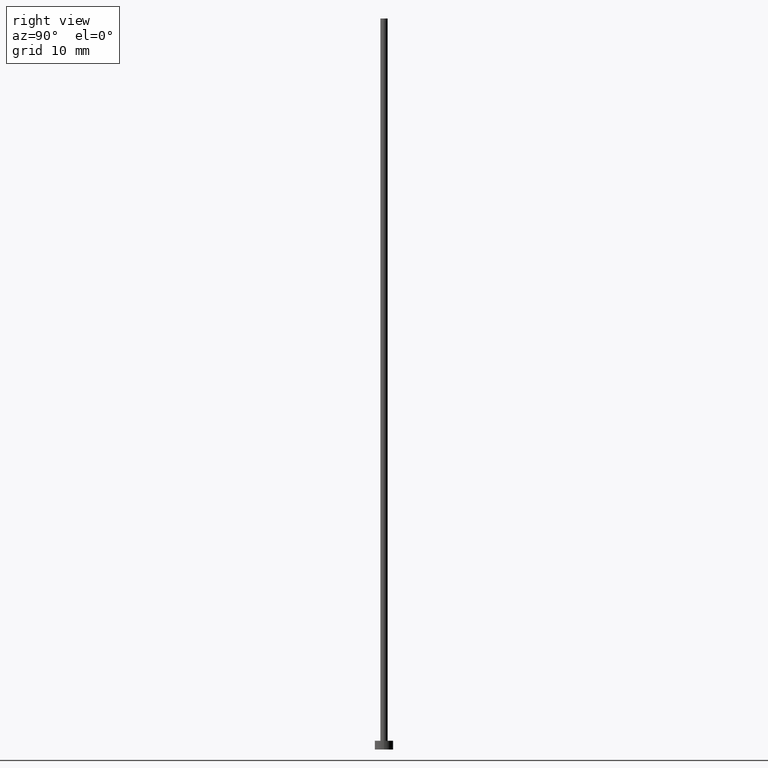
[diagram: clean part render]
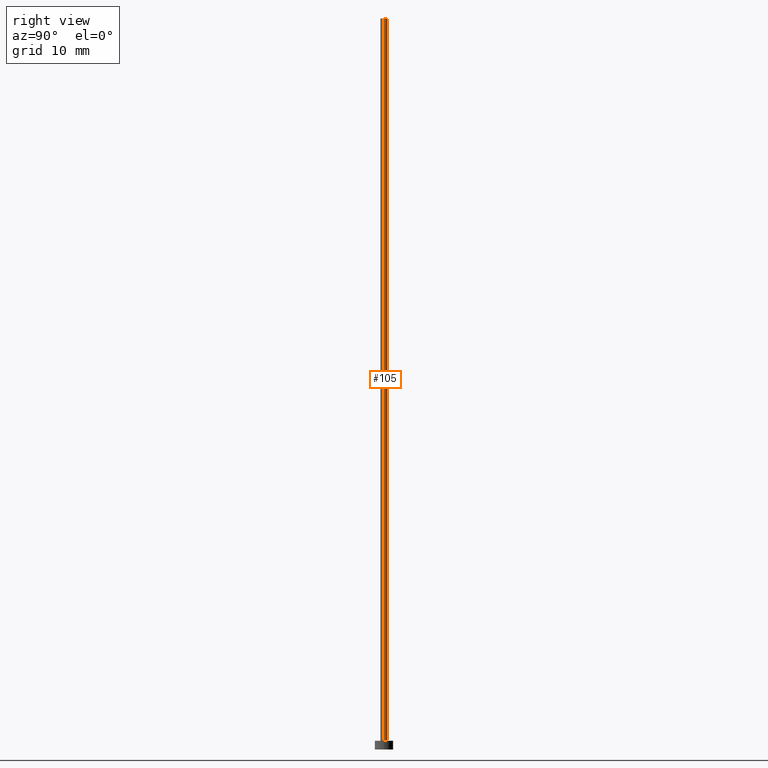
[diagram: same view with one face highlighted and labeled with its STEP entity id]
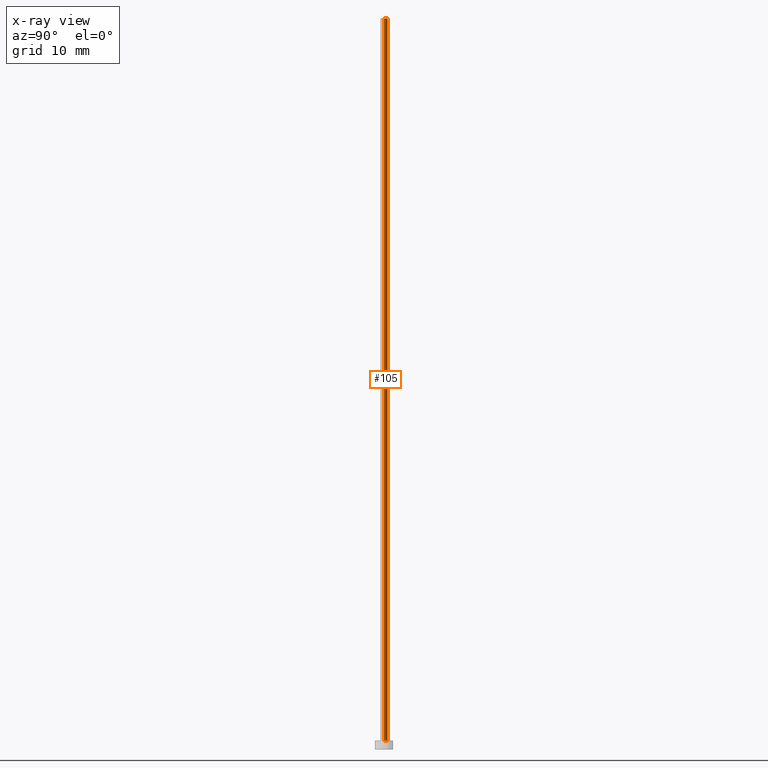
[diagram: x-ray of the same camera — body ghosted, the highlighted face saturated]
A machine part, right view. The second image highlights one B-rep face of the part: STEP entity #105.
The next image is the same camera in x-ray: the body ghosted, the highlighted face saturated — about 0% of this face is hidden behind the body in this view.
In plain terms, the highlighted cylindrical surface (edge-blend (fillet) strip) has radius 0.5 mm, axis along (-0, -0, -1).
Its self-contained STEP definition (entity closure, byte-faithful):
#12 = AXIS2_PLACEMENT_3D ( 'NONE', #115, #232, #173 ) ;
#21 = EDGE_CURVE ( 'NONE', #29, #225, #75, .T. ) ;
#29 = VERTEX_POINT ( 'NONE', #240 ) ;
#34 = CARTESIAN_POINT ( 'NONE',  ( 0.5000000000000000000, 6.123233995736766036E-17, 1.199999999999999956 ) ) ;
#36 = VECTOR ( 'NONE', #252, 1000.000000000000000 ) ;
#53 = DIRECTION ( 'NONE',  ( -0.000000000000000000, -0.000000000000000000, -1.000000000000000000 ) ) ;
#75 = LINE ( 'NONE', #150, #251 ) ;
#81 = CYLINDRICAL_SURFACE ( 'NONE', #192, 0.5000000000000000000 ) ;
#83 = AXIS2_PLACEMENT_3D ( 'NONE', #227, #209, #99 ) ;
#90 = ORIENTED_EDGE ( 'NONE', *, *, #21, .F. ) ;
#91 = VERTEX_POINT ( 'NONE', #154 ) ;
#97 = EDGE_CURVE ( 'NONE', #91, #29, #128, .T. ) ;
#99 = DIRECTION ( 'NONE',  ( 1.000000000000000000, 0.000000000000000000, 0.000000000000000000 ) ) ;
#105 = ADVANCED_FACE ( 'NONE', ( #229 ), #81, .T. ) ;
#109 = ORIENTED_EDGE ( 'NONE', *, *, #97, .F. ) ;
#115 = CARTESIAN_POINT ( 'NONE',  ( 0.000000000000000000, 0.000000000000000000, 100.0000000000000000 ) ) ;
#125 = CIRCLE ( 'NONE', #83, 0.5000000000000000000 ) ;
#127 = ORIENTED_EDGE ( 'NONE', *, *, #218, .T. ) ;
#128 = CIRCLE ( 'NONE', #12, 0.5000000000000000000 ) ;
#133 = DIRECTION ( 'NONE',  ( -1.000000000000000000, 0.000000000000000000, 0.000000000000000000 ) ) ;
#147 = EDGE_LOOP ( 'NONE', ( #109, #224, #127, #90 ) ) ;
#150 = CARTESIAN_POINT ( 'NONE',  ( -0.5000000000000000000, 0.000000000000000000, 100.0000000000000000 ) ) ;
#154 = CARTESIAN_POINT ( 'NONE',  ( 0.5000000000000000000, 6.123233995736766036E-17, 100.0000000000000000 ) ) ;
#170 = EDGE_CURVE ( 'NONE', #91, #190, #195, .T. ) ;
#173 = DIRECTION ( 'NONE',  ( 1.000000000000000000, 0.000000000000000000, 0.000000000000000000 ) ) ;
#174 = CARTESIAN_POINT ( 'NONE',  ( 0.5000000000000000000, 6.123233995736766036E-17, 100.0000000000000000 ) ) ;
#177 = DIRECTION ( 'NONE',  ( -0.000000000000000000, -0.000000000000000000, -1.000000000000000000 ) ) ;
#190 = VERTEX_POINT ( 'NONE', #34 ) ;
#192 = AXIS2_PLACEMENT_3D ( 'NONE', #212, #177, #133 ) ;
#195 = LINE ( 'NONE', #174, #36 ) ;
#209 = DIRECTION ( 'NONE',  ( 0.000000000000000000, 0.000000000000000000, 1.000000000000000000 ) ) ;
#212 = CARTESIAN_POINT ( 'NONE',  ( 0.000000000000000000, 0.000000000000000000, 100.0000000000000000 ) ) ;
#213 = CARTESIAN_POINT ( 'NONE',  ( -0.5000000000000000000, 0.000000000000000000, 1.199999999999999956 ) ) ;
#218 = EDGE_CURVE ( 'NONE', #190, #225, #125, .T. ) ;
#224 = ORIENTED_EDGE ( 'NONE', *, *, #170, .T. ) ;
#225 = VERTEX_POINT ( 'NONE', #213 ) ;
#227 = CARTESIAN_POINT ( 'NONE',  ( 0.000000000000000000, 0.000000000000000000, 1.199999999999999956 ) ) ;
#229 = FACE_OUTER_BOUND ( 'NONE', #147, .T. ) ;
#232 = DIRECTION ( 'NONE',  ( 0.000000000000000000, 0.000000000000000000, 1.000000000000000000 ) ) ;
#240 = CARTESIAN_POINT ( 'NONE',  ( -0.5000000000000000000, 0.000000000000000000, 100.0000000000000000 ) ) ;
#251 = VECTOR ( 'NONE', #53, 1000.000000000000000 ) ;
#252 = DIRECTION ( 'NONE',  ( -0.000000000000000000, -0.000000000000000000, -1.000000000000000000 ) ) ;